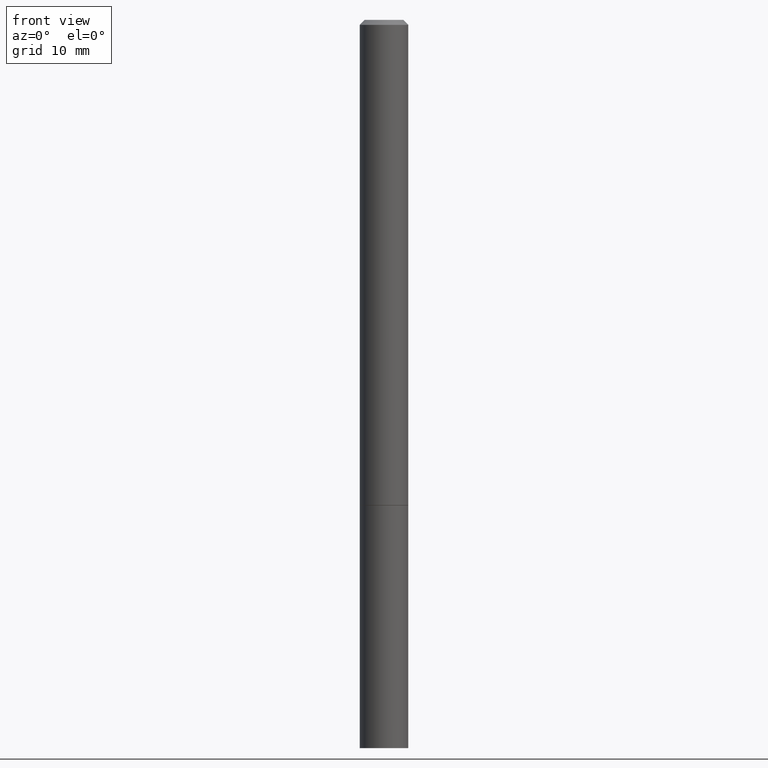
[diagram: clean part render]
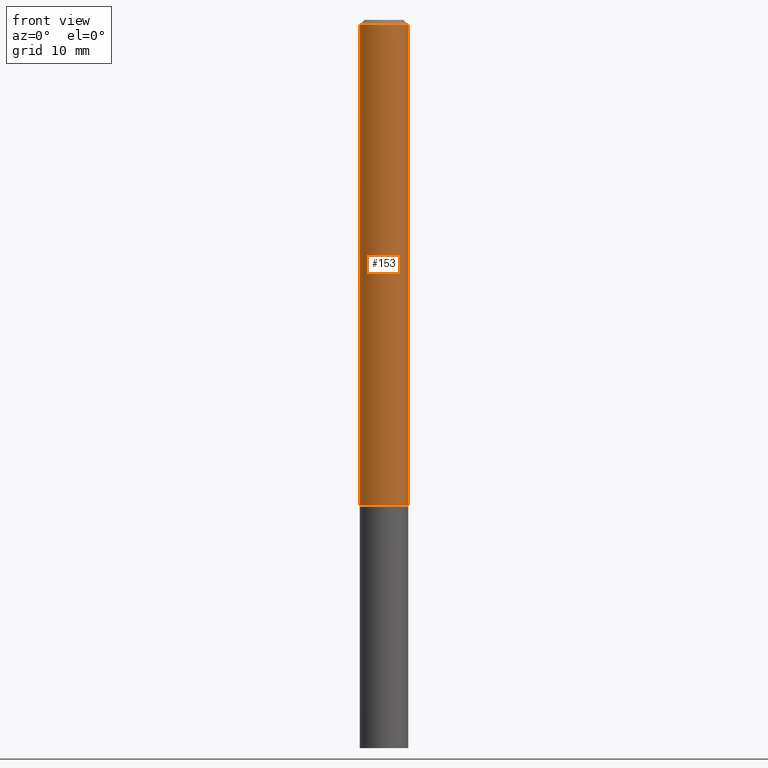
[diagram: same view with one face highlighted and labeled with its STEP entity id]
A machine part, front view. The second image highlights one B-rep face of the part: STEP entity #153.
In plain terms, the highlighted cylindrical surface (edge-blend (fillet) strip) has radius 2.5006 mm, axis along (-0, 0, 1).
Its self-contained STEP definition (entity closure, byte-faithful):
#6 = CARTESIAN_POINT ( 'NONE',  ( -0.09844999999999987095, 6.995293233558177160E-16, -4.842691596355948437E-30 ) ) ;
#34 = FACE_OUTER_BOUND ( 'NONE', #201, .T. ) ;
#38 = CYLINDRICAL_SURFACE ( 'NONE', #358, 0.09844999999999987095 ) ;
#42 = DIRECTION ( 'NONE',  ( 1.000000000000000000, -6.982962677686266711E-15, 0.000000000000000000 ) ) ;
#50 = CARTESIAN_POINT ( 'NONE',  ( 4.811459876169255671E-29, -6.869489534173887122E-15, -1.967499999999999805 ) ) ;
#79 = CARTESIAN_POINT ( 'NONE',  ( 0.09844999999999999585, -7.556962209792099682E-15, -1.967499999999999805 ) ) ;
#84 = LINE ( 'NONE', #6, #215 ) ;
#93 = ORIENTED_EDGE ( 'NONE', *, *, #241, .T. ) ;
#107 = DIRECTION ( 'NONE',  ( 1.000000000000000000, -6.982962677686266711E-15, 4.876176775795936353E-29 ) ) ;
#113 = VERTEX_POINT ( 'NONE', #79 ) ;
#124 = DIRECTION ( 'NONE',  ( 1.000000000000000000, -6.982962677686265922E-15, 0.000000000000000000 ) ) ;
#141 = CARTESIAN_POINT ( 'NONE',  ( 0.000000000000000000, 0.000000000000000000, 0.000000000000000000 ) ) ;
#142 = ORIENTED_EDGE ( 'NONE', *, *, #332, .F. ) ;
#150 = EDGE_CURVE ( 'NONE', #113, #200, #286, .T. ) ;
#153 = ADVANCED_FACE ( 'NONE', ( #34 ), #38, .T. ) ;
#158 = EDGE_CURVE ( 'NONE', #348, #343, #84, .T. ) ;
#166 = DIRECTION ( 'NONE',  ( -2.445468806185136877E-29, 3.491481338843145188E-15, 1.000000000000000000 ) ) ;
#168 = DIRECTION ( 'NONE',  ( -2.445468806185136597E-29, 3.491481338843145583E-15, 1.000000000000000000 ) ) ;
#179 = DIRECTION ( 'NONE',  ( -2.445468806185136597E-29, 3.491481338843145583E-15, 1.000000000000000000 ) ) ;
#183 = AXIS2_PLACEMENT_3D ( 'NONE', #347, #349, #42 ) ;
#198 = CARTESIAN_POINT ( 'NONE',  ( 0.09844999999999987095, -6.874726756182120670E-16, 4.800596035771092908E-30 ) ) ;
#200 = VERTEX_POINT ( 'NONE', #255 ) ;
#201 = EDGE_LOOP ( 'NONE', ( #353, #93, #256, #142 ) ) ;
#215 = VECTOR ( 'NONE', #283, 39.37007874015748143 ) ;
#236 = AXIS2_PLACEMENT_3D ( 'NONE', #50, #179, #124 ) ;
#241 = EDGE_CURVE ( 'NONE', #348, #113, #300, .T. ) ;
#255 = CARTESIAN_POINT ( 'NONE',  ( 0.09844999999999975993, -7.452456546574685329E-16, -0.02000000000000002123 ) ) ;
#256 = ORIENTED_EDGE ( 'NONE', *, *, #150, .T. ) ;
#283 = DIRECTION ( 'NONE',  ( -2.445468806185136877E-29, 3.491481338843145188E-15, 1.000000000000000000 ) ) ;
#285 = VECTOR ( 'NONE', #166, 39.37007874015748143 ) ;
#286 = LINE ( 'NONE', #198, #285 ) ;
#288 = CARTESIAN_POINT ( 'NONE',  ( -0.09844999999999998197, -2.770130257119553156E-15, -1.967499999999999805 ) ) ;
#300 = CIRCLE ( 'NONE', #236, 0.09844999999999999585 ) ;
#321 = CARTESIAN_POINT ( 'NONE',  ( -0.09844999999999975993, 6.176430488413482758E-16, -0.02000000000000002123 ) ) ;
#331 = CIRCLE ( 'NONE', #183, 0.09844999999999975993 ) ;
#332 = EDGE_CURVE ( 'NONE', #343, #200, #331, .T. ) ;
#343 = VERTEX_POINT ( 'NONE', #321 ) ;
#347 = CARTESIAN_POINT ( 'NONE',  ( 4.890937612370278413E-31, -6.982962677686297772E-17, -0.02000000000000002123 ) ) ;
#348 = VERTEX_POINT ( 'NONE', #288 ) ;
#349 = DIRECTION ( 'NONE',  ( -2.445468806185136597E-29, 3.491481338843145583E-15, 1.000000000000000000 ) ) ;
#353 = ORIENTED_EDGE ( 'NONE', *, *, #158, .F. ) ;
#358 = AXIS2_PLACEMENT_3D ( 'NONE', #141, #168, #107 ) ;